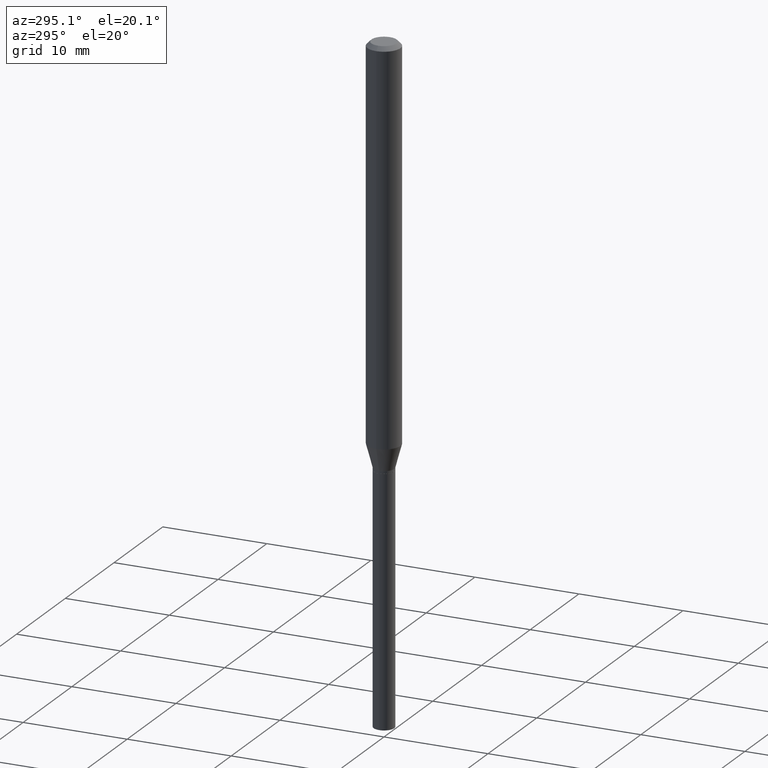
[diagram: clean part render]
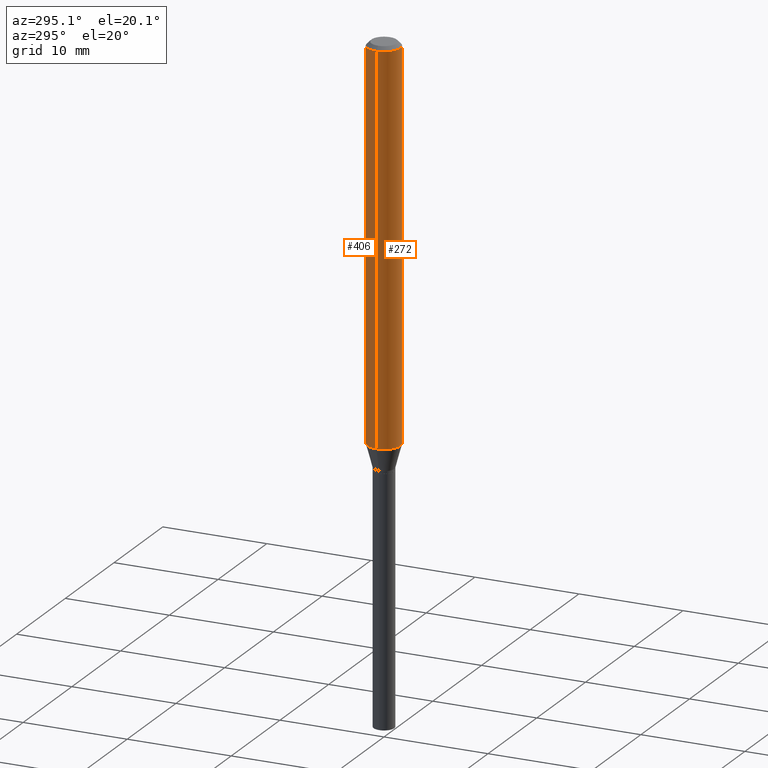
[diagram: same view with one multi-face feature highlighted, each face labeled with its STEP entity id]
A machine part, auxiliary view. The highlighted faces form ONE feature: a constant-radius fillet chain: 2 tangent blend faces with common blend radius 1.5875 mm. The faces share edges in the B-rep.
Their STEP definitions:
[1] entity #272 (Cylinder):
#51 = VERTEX_POINT ( 'NONE', #130 ) ;
#61 = FACE_OUTER_BOUND ( 'NONE', #246, .T. ) ;
#70 = CARTESIAN_POINT ( 'NONE',  ( -0.06250000000000000000, 4.440892098500626162E-16, -3.074334431409316114E-30 ) ) ;
#74 = DIRECTION ( 'NONE',  ( -2.445468806185136877E-29, 3.491481338843145188E-15, 1.000000000000000000 ) ) ;
#95 = DIRECTION ( 'NONE',  ( -2.445468806185136597E-29, 3.491481338843145583E-15, 1.000000000000000000 ) ) ;
#115 = CARTESIAN_POINT ( 'NONE',  ( 3.585783099736017642E-29, -5.119547935431576050E-15, -1.466296806022130417 ) ) ;
#126 = LINE ( 'NONE', #341, #337 ) ;
#130 = CARTESIAN_POINT ( 'NONE',  ( 0.06250000000000000000, -4.888073874380388472E-16, -0.01499999999999999944 ) ) ;
#142 = AXIS2_PLACEMENT_3D ( 'NONE', #457, #95, #232 ) ;
#150 = ORIENTED_EDGE ( 'NONE', *, *, #452, .T. ) ;
#179 = DIRECTION ( 'NONE',  ( 1.000000000000000000, -6.982962677686262766E-15, 0.000000000000000000 ) ) ;
#188 = EDGE_CURVE ( 'NONE', #215, #51, #330, .T. ) ;
#197 = DIRECTION ( 'NONE',  ( 1.000000000000000000, -6.982962677686266711E-15, 4.876176775795935793E-29 ) ) ;
#201 = CYLINDRICAL_SURFACE ( 'NONE', #362, 0.06250000000000000000 ) ;
#215 = VERTEX_POINT ( 'NONE', #277 ) ;
#232 = DIRECTION ( 'NONE',  ( 1.000000000000000000, -6.982962677686266711E-15, 0.000000000000000000 ) ) ;
#243 = CARTESIAN_POINT ( 'NONE',  ( 0.000000000000000000, 0.000000000000000000, 0.000000000000000000 ) ) ;
#246 = EDGE_LOOP ( 'NONE', ( #453, #260, #150, #370 ) ) ;
#247 = DIRECTION ( 'NONE',  ( -2.445468806185136597E-29, 3.491481338843145583E-15, 1.000000000000000000 ) ) ;
#260 = ORIENTED_EDGE ( 'NONE', *, *, #386, .T. ) ;
#263 = CIRCLE ( 'NONE', #384, 0.06250000000000000000 ) ;
#272 = ADVANCED_FACE ( 'NONE', ( #61 ), #201, .T. ) ;
#274 = CARTESIAN_POINT ( 'NONE',  ( 0.06250000000000000000, -5.555983102786967719E-15, -1.466296806022130417 ) ) ;
#277 = CARTESIAN_POINT ( 'NONE',  ( -0.06250000000000000000, -2.141870867907049540E-15, -0.01499999999999999944 ) ) ;
#286 = VERTEX_POINT ( 'NONE', #274 ) ;
#301 = DIRECTION ( 'NONE',  ( -2.445468806185136877E-29, 3.491481338843145188E-15, 1.000000000000000000 ) ) ;
#330 = CIRCLE ( 'NONE', #142, 0.06250000000000000000 ) ;
#337 = VECTOR ( 'NONE', #301, 39.37007874015748143 ) ;
#341 = CARTESIAN_POINT ( 'NONE',  ( 0.06250000000000000000, -4.364351673553916694E-16, 3.047610484872459871E-30 ) ) ;
#362 = AXIS2_PLACEMENT_3D ( 'NONE', #243, #389, #197 ) ;
#370 = ORIENTED_EDGE ( 'NONE', *, *, #188, .F. ) ;
#384 = AXIS2_PLACEMENT_3D ( 'NONE', #115, #247, #179 ) ;
#386 = EDGE_CURVE ( 'NONE', #430, #286, #263, .T. ) ;
#389 = DIRECTION ( 'NONE',  ( -2.445468806185136597E-29, 3.491481338843145583E-15, 1.000000000000000000 ) ) ;
#397 = LINE ( 'NONE', #70, #460 ) ;
#398 = CARTESIAN_POINT ( 'NONE',  ( -0.06250000000000000000, -4.675458725581512645E-15, -1.466296806022130417 ) ) ;
#403 = EDGE_CURVE ( 'NONE', #430, #215, #397, .T. ) ;
#430 = VERTEX_POINT ( 'NONE', #398 ) ;
#452 = EDGE_CURVE ( 'NONE', #286, #51, #126, .T. ) ;
#453 = ORIENTED_EDGE ( 'NONE', *, *, #403, .F. ) ;
#457 = CARTESIAN_POINT ( 'NONE',  ( 3.668203209277705088E-31, -5.237222008264718399E-17, -0.01499999999999999944 ) ) ;
#460 = VECTOR ( 'NONE', #74, 39.37007874015748143 ) ;
[2] entity #406 (Cylinder):
#8 = DIRECTION ( 'NONE',  ( 1.000000000000000000, -6.982962677686266711E-15, 4.876176775795935793E-29 ) ) ;
#21 = DIRECTION ( 'NONE',  ( -2.445468806185136597E-29, 3.491481338843145583E-15, 1.000000000000000000 ) ) ;
#39 = CIRCLE ( 'NONE', #165, 0.06250000000000000000 ) ;
#41 = CARTESIAN_POINT ( 'NONE',  ( 0.000000000000000000, 0.000000000000000000, 0.000000000000000000 ) ) ;
#51 = VERTEX_POINT ( 'NONE', #130 ) ;
#70 = CARTESIAN_POINT ( 'NONE',  ( -0.06250000000000000000, 4.440892098500626162E-16, -3.074334431409316114E-30 ) ) ;
#74 = DIRECTION ( 'NONE',  ( -2.445468806185136877E-29, 3.491481338843145188E-15, 1.000000000000000000 ) ) ;
#77 = CIRCLE ( 'NONE', #120, 0.06250000000000000000 ) ;
#120 = AXIS2_PLACEMENT_3D ( 'NONE', #138, #21, #303 ) ;
#126 = LINE ( 'NONE', #341, #337 ) ;
#130 = CARTESIAN_POINT ( 'NONE',  ( 0.06250000000000000000, -4.888073874380388472E-16, -0.01499999999999999944 ) ) ;
#138 = CARTESIAN_POINT ( 'NONE',  ( 3.585783099736017642E-29, -5.119547935431576050E-15, -1.466296806022130417 ) ) ;
#144 = ORIENTED_EDGE ( 'NONE', *, *, #403, .T. ) ;
#147 = DIRECTION ( 'NONE',  ( 1.000000000000000000, -6.982962677686266711E-15, 0.000000000000000000 ) ) ;
#165 = AXIS2_PLACEMENT_3D ( 'NONE', #253, #440, #147 ) ;
#169 = EDGE_CURVE ( 'NONE', #286, #430, #77, .T. ) ;
#178 = AXIS2_PLACEMENT_3D ( 'NONE', #41, #323, #8 ) ;
#182 = CYLINDRICAL_SURFACE ( 'NONE', #178, 0.06250000000000000000 ) ;
#184 = ORIENTED_EDGE ( 'NONE', *, *, #169, .T. ) ;
#215 = VERTEX_POINT ( 'NONE', #277 ) ;
#241 = EDGE_LOOP ( 'NONE', ( #184, #144, #326, #331 ) ) ;
#253 = CARTESIAN_POINT ( 'NONE',  ( 3.668203209277705088E-31, -5.237222008264718399E-17, -0.01499999999999999944 ) ) ;
#274 = CARTESIAN_POINT ( 'NONE',  ( 0.06250000000000000000, -5.555983102786967719E-15, -1.466296806022130417 ) ) ;
#277 = CARTESIAN_POINT ( 'NONE',  ( -0.06250000000000000000, -2.141870867907049540E-15, -0.01499999999999999944 ) ) ;
#286 = VERTEX_POINT ( 'NONE', #274 ) ;
#301 = DIRECTION ( 'NONE',  ( -2.445468806185136877E-29, 3.491481338843145188E-15, 1.000000000000000000 ) ) ;
#303 = DIRECTION ( 'NONE',  ( 1.000000000000000000, -6.982962677686262766E-15, 0.000000000000000000 ) ) ;
#323 = DIRECTION ( 'NONE',  ( -2.445468806185136597E-29, 3.491481338843145583E-15, 1.000000000000000000 ) ) ;
#326 = ORIENTED_EDGE ( 'NONE', *, *, #335, .F. ) ;
#331 = ORIENTED_EDGE ( 'NONE', *, *, #452, .F. ) ;
#335 = EDGE_CURVE ( 'NONE', #51, #215, #39, .T. ) ;
#337 = VECTOR ( 'NONE', #301, 39.37007874015748143 ) ;
#341 = CARTESIAN_POINT ( 'NONE',  ( 0.06250000000000000000, -4.364351673553916694E-16, 3.047610484872459871E-30 ) ) ;
#360 = FACE_OUTER_BOUND ( 'NONE', #241, .T. ) ;
#397 = LINE ( 'NONE', #70, #460 ) ;
#398 = CARTESIAN_POINT ( 'NONE',  ( -0.06250000000000000000, -4.675458725581512645E-15, -1.466296806022130417 ) ) ;
#403 = EDGE_CURVE ( 'NONE', #430, #215, #397, .T. ) ;
#406 = ADVANCED_FACE ( 'NONE', ( #360 ), #182, .T. ) ;
#430 = VERTEX_POINT ( 'NONE', #398 ) ;
#440 = DIRECTION ( 'NONE',  ( -2.445468806185136597E-29, 3.491481338843145583E-15, 1.000000000000000000 ) ) ;
#452 = EDGE_CURVE ( 'NONE', #286, #51, #126, .T. ) ;
#460 = VECTOR ( 'NONE', #74, 39.37007874015748143 ) ;